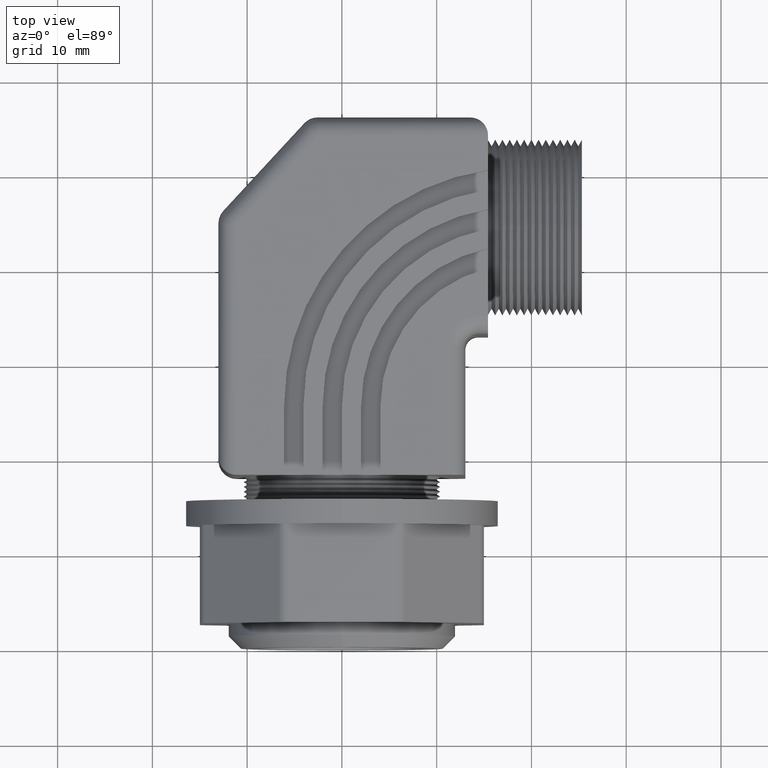
[diagram: clean part render]
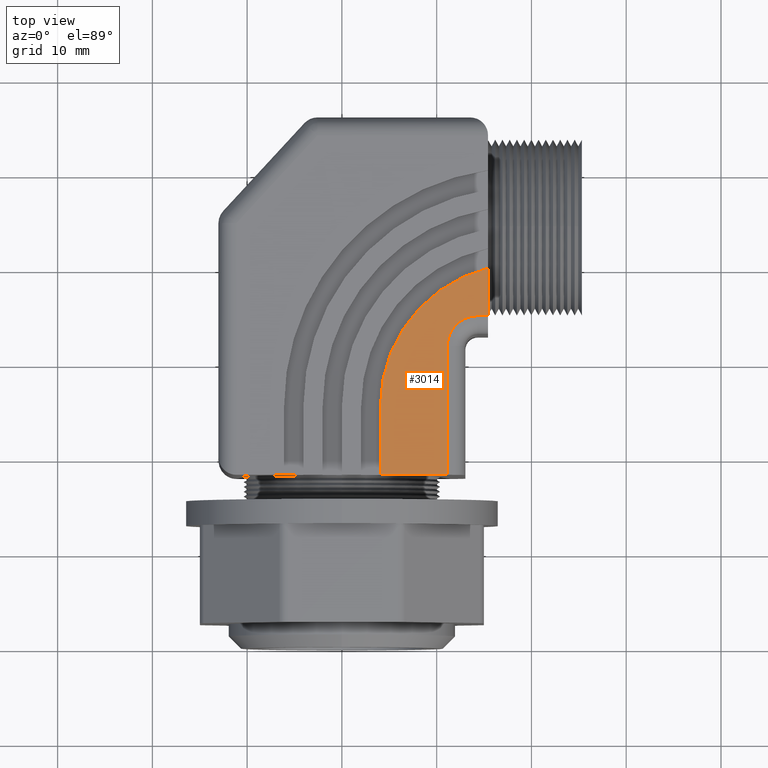
[diagram: same view with one face highlighted and labeled with its STEP entity id]
A machine part, top view. The second image highlights one B-rep face of the part: STEP entity #3014.
In plain terms, the highlighted planar face has unit normal (0, 0, 1).
Its self-contained STEP definition (entity closure, byte-faithful):
#2624 = EDGE_CURVE ( 'NONE', #2719, #2735, #5006, .T. ) ;
#2719 = VERTEX_POINT ( 'NONE', #5197 ) ;
#2735 = VERTEX_POINT ( 'NONE', #5232 ) ;
#2907 = VERTEX_POINT ( 'NONE', #5513 ) ;
#2925 = EDGE_CURVE ( 'NONE', #2941, #2907, #5542, .T. ) ;
#2941 = VERTEX_POINT ( 'NONE', #5614 ) ;
#2972 = EDGE_CURVE ( 'NONE', #3023, #2907, #5634, .T. ) ;
#2975 = EDGE_CURVE ( 'NONE', #3054, #2976, #5681, .T. ) ;
#2976 = VERTEX_POINT ( 'NONE', #5676 ) ;
#2977 = ORIENTED_EDGE ( 'NONE', *, *, #3013, .T. ) ;
#2980 = ORIENTED_EDGE ( 'NONE', *, *, #2972, .F. ) ;
#2982 = ORIENTED_EDGE ( 'NONE', *, *, #2925, .T. ) ;
#2984 = ORIENTED_EDGE ( 'NONE', *, *, #2975, .T. ) ;
#2985 = ORIENTED_EDGE ( 'NONE', *, *, #3029, .T. ) ;
#3013 = EDGE_CURVE ( 'NONE', #3023, #2719, #5701, .T. ) ;
#3014 = ADVANCED_FACE ( 'NONE', ( #5697 ), #5695, .T. ) ;
#3020 = EDGE_LOOP ( 'NONE', ( #2982, #2980, #2977, #3055, #3053, #2984, #2985 ) ) ;
#3021 = EDGE_CURVE ( 'NONE', #2735, #3054, #5738, .T. ) ;
#3023 = VERTEX_POINT ( 'NONE', #5729 ) ;
#3029 = EDGE_CURVE ( 'NONE', #2976, #2941, #5780, .T. ) ;
#3053 = ORIENTED_EDGE ( 'NONE', *, *, #3021, .T. ) ;
#3054 = VERTEX_POINT ( 'NONE', #5789 ) ;
#3055 = ORIENTED_EDGE ( 'NONE', *, *, #2624, .T. ) ;
#5003 = DIRECTION ( 'NONE',  ( 1.000000000000000000, 2.662527726417833300E-016, -0.0000000000000000000 ) ) ;
#5004 = VECTOR ( 'NONE', #5003, 39.37007874015748100 ) ;
#5005 = CARTESIAN_POINT ( 'NONE',  ( 0.5130177550000002400, 0.7140000000000000800, 0.5000000000000000000 ) ) ;
#5006 = LINE ( 'NONE', #5005, #5004 ) ;
#5197 = CARTESIAN_POINT ( 'NONE',  ( 0.1600000000000000600, 0.7140000000000000800, 0.5000000000000000000 ) ) ;
#5232 = CARTESIAN_POINT ( 'NONE',  ( 0.4380177550000002300, 0.7140000000000000800, 0.5000000000000000000 ) ) ;
#5513 = CARTESIAN_POINT ( 'NONE',  ( 0.6069822449999997500, 1.572403635343766900, 0.5000000000000001100 ) ) ;
#5539 = DIRECTION ( 'NONE',  ( -1.517693329813479600E-016, 1.000000000000000000, -0.0000000000000000000 ) ) ;
#5540 = VECTOR ( 'NONE', #5539, 39.37007874015748100 ) ;
#5541 = CARTESIAN_POINT ( 'NONE',  ( 0.6069822449999997500, 2.200000000000000200, 0.5000000000000000000 ) ) ;
#5542 = LINE ( 'NONE', #5541, #5540 ) ;
#5614 = CARTESIAN_POINT ( 'NONE',  ( 0.6069822449999998600, 1.375000000000000200, 0.5000000000000000000 ) ) ;
#5630 = DIRECTION ( 'NONE',  ( -1.000000000000000000, 0.0000000000000000000, 0.0000000000000000000 ) ) ;
#5631 = DIRECTION ( 'NONE',  ( -0.0000000000000000000, -0.0000000000000000000, -1.000000000000000000 ) ) ;
#5632 = CARTESIAN_POINT ( 'NONE',  ( 0.7500000000000001100, 1.000000000000000200, 0.5000000000000002200 ) ) ;
#5633 = AXIS2_PLACEMENT_3D ( 'NONE', #5632, #5631, #5630 ) ;
#5634 = CIRCLE ( 'NONE', #5633, 0.5899999999999999700 ) ;
#5676 = CARTESIAN_POINT ( 'NONE',  ( 0.5630177550000004000, 1.375000000000000400, 0.5000000000000000000 ) ) ;
#5677 = DIRECTION ( 'NONE',  ( 1.000000000000000000, 0.0000000000000000000, 0.0000000000000000000 ) ) ;
#5678 = DIRECTION ( 'NONE',  ( -0.0000000000000000000, -0.0000000000000000000, -1.000000000000000000 ) ) ;
#5679 = CARTESIAN_POINT ( 'NONE',  ( 0.5630177549999998400, 1.250000000000000200, 0.5000000000000000000 ) ) ;
#5680 = AXIS2_PLACEMENT_3D ( 'NONE', #5679, #5678, #5677 ) ;
#5681 = CIRCLE ( 'NONE', #5680, 0.1250000000000001700 ) ;
#5691 = DIRECTION ( 'NONE',  ( 1.000000000000000000, 0.0000000000000000000, -0.0000000000000000000 ) ) ;
#5692 = DIRECTION ( 'NONE',  ( 0.0000000000000000000, 0.0000000000000000000, 1.000000000000000000 ) ) ;
#5693 = CARTESIAN_POINT ( 'NONE',  ( 0.5630177549999998400, 1.250000000000000200, 0.5000000000000000000 ) ) ;
#5694 = AXIS2_PLACEMENT_3D ( 'NONE', #5693, #5692, #5691 ) ;
#5695 = PLANE ( 'NONE',  #5694 ) ;
#5697 = FACE_OUTER_BOUND ( 'NONE', #3020, .T. ) ;
#5698 = DIRECTION ( 'NONE',  ( 0.0000000000000000000, -1.000000000000000000, -0.0000000000000000000 ) ) ;
#5699 = VECTOR ( 'NONE', #5698, 39.37007874015748100 ) ;
#5700 = CARTESIAN_POINT ( 'NONE',  ( 0.1600000000000000600, 1.250000000000000200, 0.5000000000000000000 ) ) ;
#5701 = LINE ( 'NONE', #5700, #5699 ) ;
#5729 = CARTESIAN_POINT ( 'NONE',  ( 0.1600000000000000600, 1.000000000000000200, 0.5000000000000001100 ) ) ;
#5735 = DIRECTION ( 'NONE',  ( -7.645096997194762600E-016, 1.000000000000000000, 0.0000000000000000000 ) ) ;
#5736 = VECTOR ( 'NONE', #5735, 39.37007874015748100 ) ;
#5737 = CARTESIAN_POINT ( 'NONE',  ( 0.4380177549999998400, 1.250000000000000200, 0.5000000000000000000 ) ) ;
#5738 = LINE ( 'NONE', #5737, #5736 ) ;
#5777 = DIRECTION ( 'NONE',  ( 1.000000000000000000, -6.213760227092962500E-015, 0.0000000000000000000 ) ) ;
#5778 = VECTOR ( 'NONE', #5777, 39.37007874015748100 ) ;
#5779 = CARTESIAN_POINT ( 'NONE',  ( 0.6069822450000003100, 1.375000000000000200, 0.5000000000000000000 ) ) ;
#5780 = LINE ( 'NONE', #5779, #5778 ) ;
#5789 = CARTESIAN_POINT ( 'NONE',  ( 0.4380177549999998400, 1.250000000000000200, 0.5000000000000000000 ) ) ;